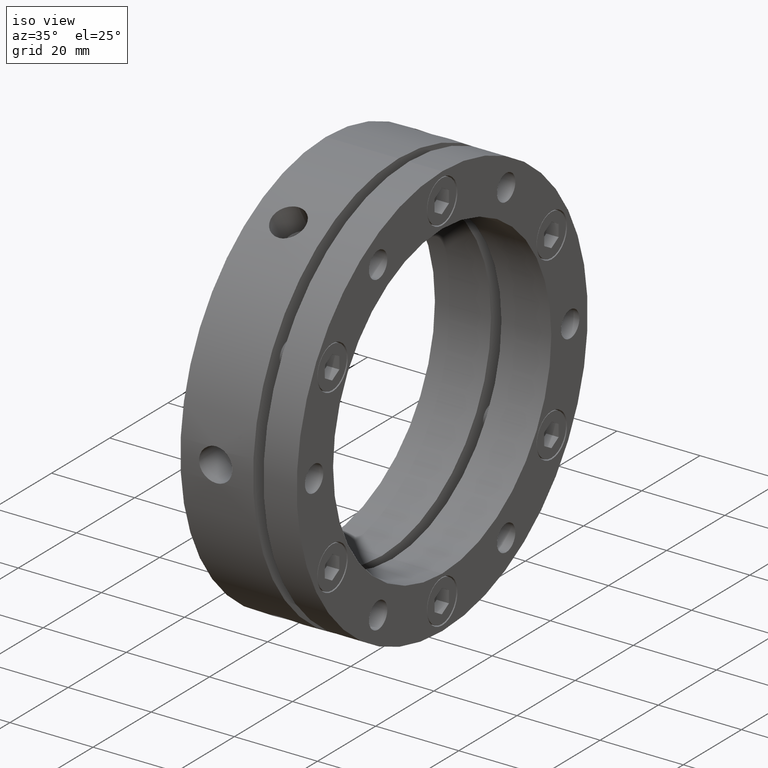
[diagram: clean part render]
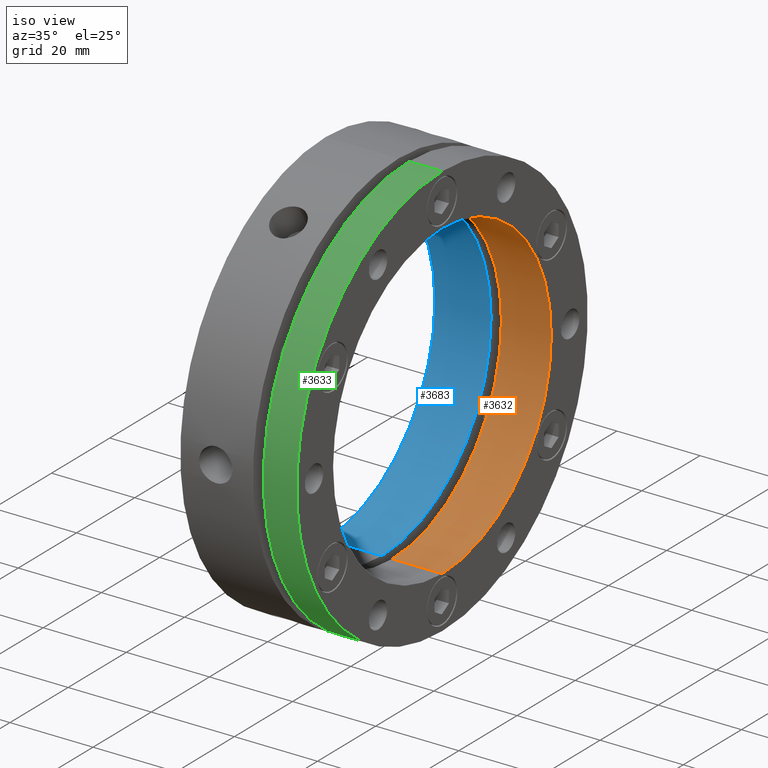
[diagram: same view with three faces highlighted in distinct colors, each labeled with its STEP entity id]
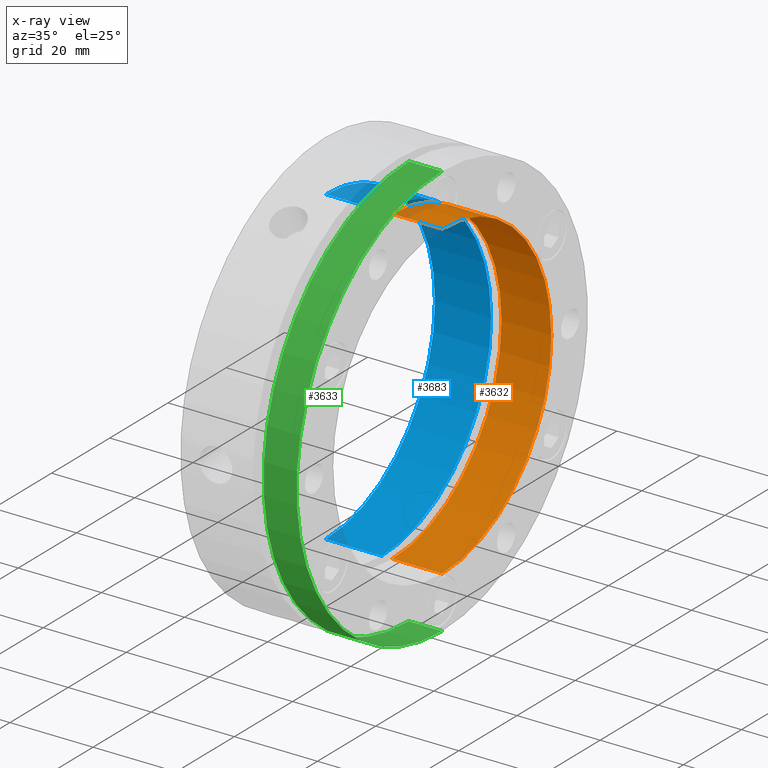
[diagram: x-ray of the same camera — body ghosted, the three highlighted faces saturated]
A machine part, iso view with three faces highlighted in distinct colors.
The next image is the same camera in x-ray (body ghosted, the three faces saturated) — at least one of them is partly hidden behind the body in this view.
Their STEP definitions:

[orange] entity #3632 — the highlighted cylindrical surface (partial cylindrical patch) has radius 37.5 mm, axis along (1, 0, 0).
#31 = EDGE_LOOP ( 'NONE', ( #2543, #2544, #2545, #2546 ) ) ;
#214 = CIRCLE ( 'NONE', #3777, 37.50000000000000000 ) ;
#289 = CIRCLE ( 'NONE', #2440, 37.50000000000000000 ) ;
#381 = LINE ( 'NONE', #872, #387 ) ;
#387 = VECTOR ( 'NONE', #877, 1000.000000000000000 ) ;
#410 = LINE ( 'NONE', #957, #417 ) ;
#417 = VECTOR ( 'NONE', #962, 1000.000000000000000 ) ;
#457 = FACE_OUTER_BOUND ( 'NONE', #31, .T. ) ;
#466 = CYLINDRICAL_SURFACE ( 'NONE', #3226, 37.50000000000000000 ) ;
#872 = CARTESIAN_POINT ( 'NONE',  ( 13.99999999999999300, 4.592425496802574400E-015, 37.50000000000000000 ) ) ;
#877 = DIRECTION ( 'NONE',  ( 1.000000000000000000, 0.0000000000000000000, 0.0000000000000000000 ) ) ;
#957 = CARTESIAN_POINT ( 'NONE',  ( 13.99999999999999300, 0.0000000000000000000, -37.50000000000000000 ) ) ;
#962 = DIRECTION ( 'NONE',  ( 1.000000000000000000, 0.0000000000000000000, 0.0000000000000000000 ) ) ;
#1061 = DIRECTION ( 'NONE',  ( 0.0000000000000000000, 0.0000000000000000000, -1.000000000000000000 ) ) ;
#1063 = DIRECTION ( 'NONE',  ( 1.000000000000000000, 0.0000000000000000000, 0.0000000000000000000 ) ) ;
#1065 = CARTESIAN_POINT ( 'NONE',  ( 13.99999999999999300, 0.0000000000000000000, 0.0000000000000000000 ) ) ;
#2440 = AXIS2_PLACEMENT_3D ( 'NONE', #4440, #4441, #4442 ) ;
#2543 = ORIENTED_EDGE ( 'NONE', *, *, #3582, .F. ) ;
#2544 = ORIENTED_EDGE ( 'NONE', *, *, #3088, .T. ) ;
#2545 = ORIENTED_EDGE ( 'NONE', *, *, #3603, .T. ) ;
#2546 = ORIENTED_EDGE ( 'NONE', *, *, #3147, .F. ) ;
#2907 = VERTEX_POINT ( 'NONE', #4048 ) ;
#2908 = VERTEX_POINT ( 'NONE', #4049 ) ;
#2912 = VERTEX_POINT ( 'NONE', #4053 ) ;
#2913 = VERTEX_POINT ( 'NONE', #4054 ) ;
#3088 = EDGE_CURVE ( 'NONE', #2908, #2907, #214, .T. ) ;
#3147 = EDGE_CURVE ( 'NONE', #2913, #2912, #289, .T. ) ;
#3226 = AXIS2_PLACEMENT_3D ( 'NONE', #1065, #1063, #1061 ) ;
#3582 = EDGE_CURVE ( 'NONE', #2908, #2913, #381, .T. ) ;
#3603 = EDGE_CURVE ( 'NONE', #2907, #2912, #410, .T. ) ;
#3632 = ADVANCED_FACE ( 'NONE', ( #457 ), #466, .F. ) ;
#3777 = AXIS2_PLACEMENT_3D ( 'NONE', #4189, #4190, #4191 ) ;
#4048 = CARTESIAN_POINT ( 'NONE',  ( 16.00000000000000000, 0.0000000000000000000, -37.50000000000000000 ) ) ;
#4049 = CARTESIAN_POINT ( 'NONE',  ( 16.00000000000000000, 4.592425496802574400E-015, 37.50000000000000000 ) ) ;
#4053 = CARTESIAN_POINT ( 'NONE',  ( 27.99999999999999300, 0.0000000000000000000, -37.50000000000000000 ) ) ;
#4054 = CARTESIAN_POINT ( 'NONE',  ( 27.99999999999999300, 4.592425496802574400E-015, 37.50000000000000000 ) ) ;
#4189 = CARTESIAN_POINT ( 'NONE',  ( 16.00000000000000000, 0.0000000000000000000, 0.0000000000000000000 ) ) ;
#4190 = DIRECTION ( 'NONE',  ( -1.000000000000000000, -0.0000000000000000000, -0.0000000000000000000 ) ) ;
#4191 = DIRECTION ( 'NONE',  ( 0.0000000000000000000, 0.0000000000000000000, -1.000000000000000000 ) ) ;
#4440 = CARTESIAN_POINT ( 'NONE',  ( 27.99999999999999300, 0.0000000000000000000, 0.0000000000000000000 ) ) ;
#4441 = DIRECTION ( 'NONE',  ( -1.000000000000000000, -0.0000000000000000000, -0.0000000000000000000 ) ) ;
#4442 = DIRECTION ( 'NONE',  ( 0.0000000000000000000, 0.0000000000000000000, -1.000000000000000000 ) ) ;

[blue] entity #3683 — the highlighted cylindrical surface (partial cylindrical patch) has radius 37.5 mm, axis along (1, 0, 0).
#85 = EDGE_LOOP ( 'NONE', ( #2697, #2698, #2699, #2700 ) ) ;
#187 = CIRCLE ( 'NONE', #4664, 37.50000000000000000 ) ;
#285 = CIRCLE ( 'NONE', #3172, 37.50000000000000000 ) ;
#419 = LINE ( 'NONE', #971, #426 ) ;
#426 = VECTOR ( 'NONE', #976, 1000.000000000000000 ) ;
#427 = LINE ( 'NONE', #977, #429 ) ;
#429 = VECTOR ( 'NONE', #975, 1000.000000000000000 ) ;
#971 = CARTESIAN_POINT ( 'NONE',  ( 13.99999999999999300, 0.0000000000000000000, -37.50000000000000000 ) ) ;
#975 = DIRECTION ( 'NONE',  ( 1.000000000000000000, 0.0000000000000000000, 0.0000000000000000000 ) ) ;
#976 = DIRECTION ( 'NONE',  ( 1.000000000000000000, 0.0000000000000000000, 0.0000000000000000000 ) ) ;
#977 = CARTESIAN_POINT ( 'NONE',  ( 13.99999999999999300, 4.592425496802574400E-015, 37.50000000000000000 ) ) ;
#1220 = DIRECTION ( 'NONE',  ( 0.0000000000000000000, 0.0000000000000000000, -1.000000000000000000 ) ) ;
#1222 = DIRECTION ( 'NONE',  ( 1.000000000000000000, 0.0000000000000000000, 0.0000000000000000000 ) ) ;
#1224 = CARTESIAN_POINT ( 'NONE',  ( 13.99999999999999300, 0.0000000000000000000, 0.0000000000000000000 ) ) ;
#1715 = FACE_OUTER_BOUND ( 'NONE', #85, .T. ) ;
#1724 = CYLINDRICAL_SURFACE ( 'NONE', #3275, 37.50000000000000000 ) ;
#2697 = ORIENTED_EDGE ( 'NONE', *, *, #3611, .F. ) ;
#2698 = ORIENTED_EDGE ( 'NONE', *, *, #3142, .F. ) ;
#2699 = ORIENTED_EDGE ( 'NONE', *, *, #3609, .T. ) ;
#2700 = ORIENTED_EDGE ( 'NONE', *, *, #3059, .F. ) ;
#2795 = VERTEX_POINT ( 'NONE', #3936 ) ;
#2817 = VERTEX_POINT ( 'NONE', #3958 ) ;
#2818 = VERTEX_POINT ( 'NONE', #3959 ) ;
#2819 = VERTEX_POINT ( 'NONE', #3960 ) ;
#3059 = EDGE_CURVE ( 'NONE', #2819, #2818, #187, .T. ) ;
#3142 = EDGE_CURVE ( 'NONE', #2795, #2817, #285, .T. ) ;
#3172 = AXIS2_PLACEMENT_3D ( 'NONE', #4425, #4426, #4427 ) ;
#3275 = AXIS2_PLACEMENT_3D ( 'NONE', #1224, #1222, #1220 ) ;
#3609 = EDGE_CURVE ( 'NONE', #2795, #2818, #419, .T. ) ;
#3611 = EDGE_CURVE ( 'NONE', #2817, #2819, #427, .T. ) ;
#3683 = ADVANCED_FACE ( 'NONE', ( #1715 ), #1724, .F. ) ;
#3936 = CARTESIAN_POINT ( 'NONE',  ( -1.040834085586084300E-014, 0.0000000000000000000, -37.50000000000000000 ) ) ;
#3958 = CARTESIAN_POINT ( 'NONE',  ( -1.040834085586084300E-014, 4.592425496802574400E-015, 37.50000000000000000 ) ) ;
#3959 = CARTESIAN_POINT ( 'NONE',  ( 13.50000000000001100, 0.0000000000000000000, -37.50000000000000000 ) ) ;
#3960 = CARTESIAN_POINT ( 'NONE',  ( 13.50000000000001100, 4.592425496802574400E-015, 37.50000000000000000 ) ) ;
#4108 = CARTESIAN_POINT ( 'NONE',  ( 13.50000000000001100, 0.0000000000000000000, 0.0000000000000000000 ) ) ;
#4109 = DIRECTION ( 'NONE',  ( -1.000000000000000000, -0.0000000000000000000, -0.0000000000000000000 ) ) ;
#4110 = DIRECTION ( 'NONE',  ( 0.0000000000000000000, 0.0000000000000000000, -1.000000000000000000 ) ) ;
#4425 = CARTESIAN_POINT ( 'NONE',  ( -1.040834085586084300E-014, 0.0000000000000000000, 0.0000000000000000000 ) ) ;
#4426 = DIRECTION ( 'NONE',  ( 1.000000000000000000, 0.0000000000000000000, 0.0000000000000000000 ) ) ;
#4427 = DIRECTION ( 'NONE',  ( 0.0000000000000000000, 0.0000000000000000000, -1.000000000000000000 ) ) ;
#4664 = AXIS2_PLACEMENT_3D ( 'NONE', #4108, #4109, #4110 ) ;

[green] entity #3633 — the highlighted cylindrical surface (partial cylindrical patch) has radius 50 mm, axis along (1, 0, 0).
#32 = EDGE_LOOP ( 'NONE', ( #2547, #2548, #2549, #2550 ) ) ;
#173 = CIRCLE ( 'NONE', #4667, 50.00000000000000000 ) ;
#249 = CIRCLE ( 'NONE', #2473, 50.00000000000000000 ) ;
#365 = LINE ( 'NONE', #837, #367 ) ;
#366 = LINE ( 'NONE', #845, #369 ) ;
#367 = VECTOR ( 'NONE', #838, 1000.000000000000000 ) ;
#369 = VECTOR ( 'NONE', #846, 1000.000000000000000 ) ;
#459 = FACE_OUTER_BOUND ( 'NONE', #32, .T. ) ;
#468 = CYLINDRICAL_SURFACE ( 'NONE', #3227, 50.00000000000000000 ) ;
#837 = CARTESIAN_POINT ( 'NONE',  ( 13.99999999999998800, 0.0000000000000000000, -50.00000000000000000 ) ) ;
#838 = DIRECTION ( 'NONE',  ( 1.000000000000000000, 0.0000000000000000000, 0.0000000000000000000 ) ) ;
#845 = CARTESIAN_POINT ( 'NONE',  ( 13.99999999999998800, 6.123233995736766100E-015, 50.00000000000000000 ) ) ;
#846 = DIRECTION ( 'NONE',  ( 1.000000000000000000, 0.0000000000000000000, 0.0000000000000000000 ) ) ;
#1064 = DIRECTION ( 'NONE',  ( 0.0000000000000000000, 0.0000000000000000000, -1.000000000000000000 ) ) ;
#1066 = DIRECTION ( 'NONE',  ( 1.000000000000000000, 0.0000000000000000000, 0.0000000000000000000 ) ) ;
#1068 = CARTESIAN_POINT ( 'NONE',  ( 13.99999999999998800, 0.0000000000000000000, 0.0000000000000000000 ) ) ;
#2341 = EDGE_CURVE ( 'NONE', #2910, #2909, #173, .T. ) ;
#2473 = AXIS2_PLACEMENT_3D ( 'NONE', #4337, #4338, #4339 ) ;
#2547 = ORIENTED_EDGE ( 'NONE', *, *, #3570, .F. ) ;
#2548 = ORIENTED_EDGE ( 'NONE', *, *, #3111, .T. ) ;
#2549 = ORIENTED_EDGE ( 'NONE', *, *, #3569, .T. ) ;
#2550 = ORIENTED_EDGE ( 'NONE', *, *, #2341, .T. ) ;
#2903 = VERTEX_POINT ( 'NONE', #4044 ) ;
#2906 = VERTEX_POINT ( 'NONE', #4047 ) ;
#2909 = VERTEX_POINT ( 'NONE', #4050 ) ;
#2910 = VERTEX_POINT ( 'NONE', #4051 ) ;
#3111 = EDGE_CURVE ( 'NONE', #2906, #2903, #249, .T. ) ;
#3227 = AXIS2_PLACEMENT_3D ( 'NONE', #1068, #1066, #1064 ) ;
#3569 = EDGE_CURVE ( 'NONE', #2903, #2910, #365, .T. ) ;
#3570 = EDGE_CURVE ( 'NONE', #2906, #2909, #366, .T. ) ;
#3633 = ADVANCED_FACE ( 'NONE', ( #459 ), #468, .T. ) ;
#3896 = CARTESIAN_POINT ( 'NONE',  ( 27.99999999999998900, 0.0000000000000000000, 0.0000000000000000000 ) ) ;
#3897 = DIRECTION ( 'NONE',  ( -1.000000000000000000, -0.0000000000000000000, -0.0000000000000000000 ) ) ;
#3898 = DIRECTION ( 'NONE',  ( 0.0000000000000000000, 0.0000000000000000000, -1.000000000000000000 ) ) ;
#4044 = CARTESIAN_POINT ( 'NONE',  ( 19.99999999999999300, 0.0000000000000000000, -50.00000000000000000 ) ) ;
#4047 = CARTESIAN_POINT ( 'NONE',  ( 19.99999999999999300, 6.123233995736766100E-015, 50.00000000000000000 ) ) ;
#4050 = CARTESIAN_POINT ( 'NONE',  ( 27.99999999999998900, 6.123233995736766100E-015, 50.00000000000000000 ) ) ;
#4051 = CARTESIAN_POINT ( 'NONE',  ( 27.99999999999998900, 0.0000000000000000000, -50.00000000000000000 ) ) ;
#4337 = CARTESIAN_POINT ( 'NONE',  ( 19.99999999999999300, 0.0000000000000000000, 0.0000000000000000000 ) ) ;
#4338 = DIRECTION ( 'NONE',  ( 1.000000000000000000, 0.0000000000000000000, 0.0000000000000000000 ) ) ;
#4339 = DIRECTION ( 'NONE',  ( 0.0000000000000000000, 0.0000000000000000000, -1.000000000000000000 ) ) ;
#4667 = AXIS2_PLACEMENT_3D ( 'NONE', #3896, #3897, #3898 ) ;